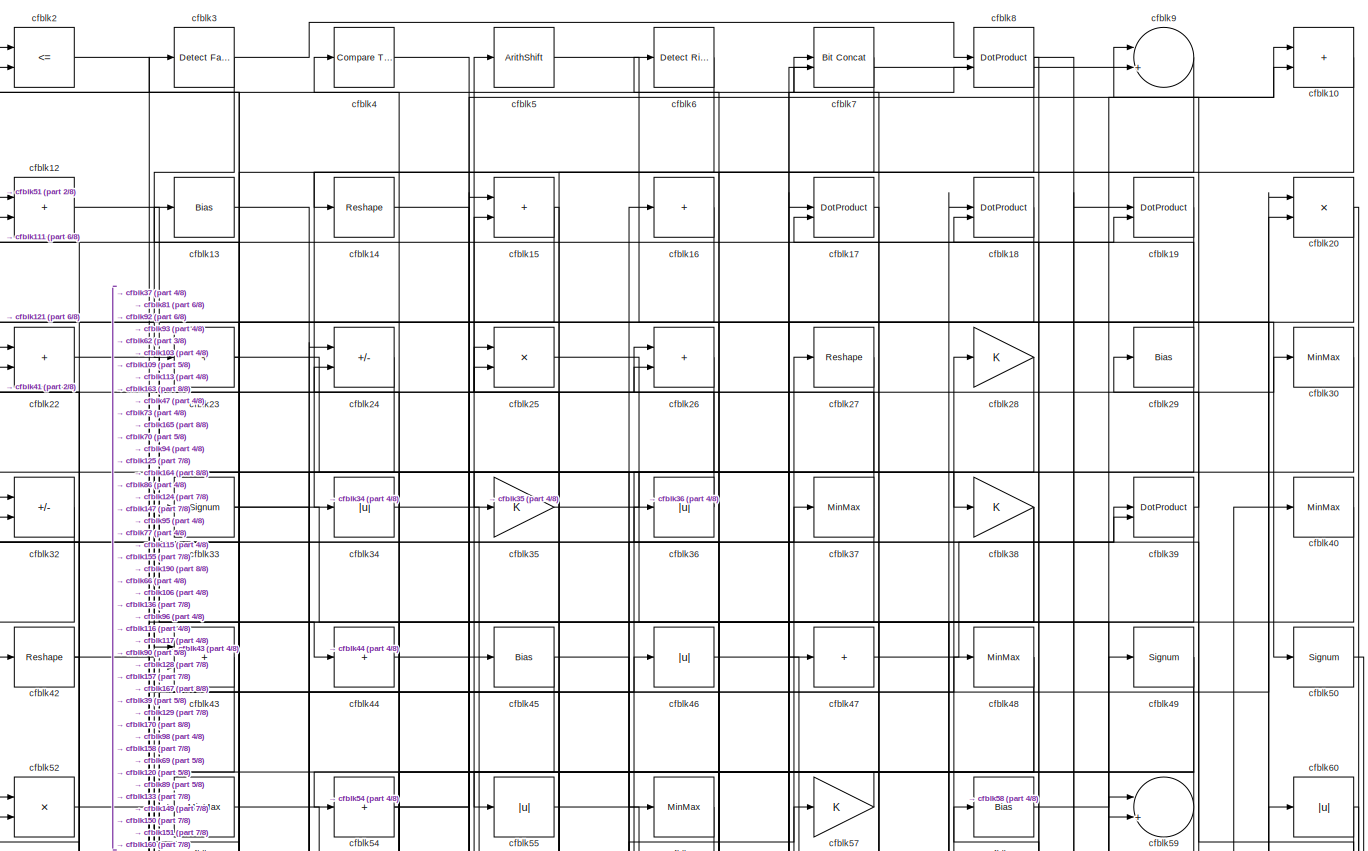
[diagram: root canvas - part 1/8, full width, top band]
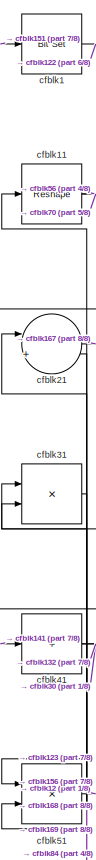
[diagram: root canvas - part 2/8, top left region]
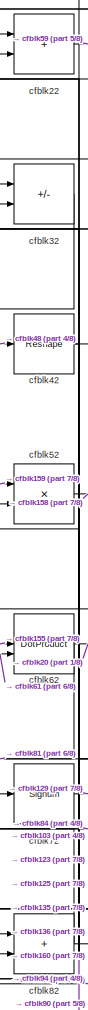
[diagram: root canvas - part 3/8, top left region]
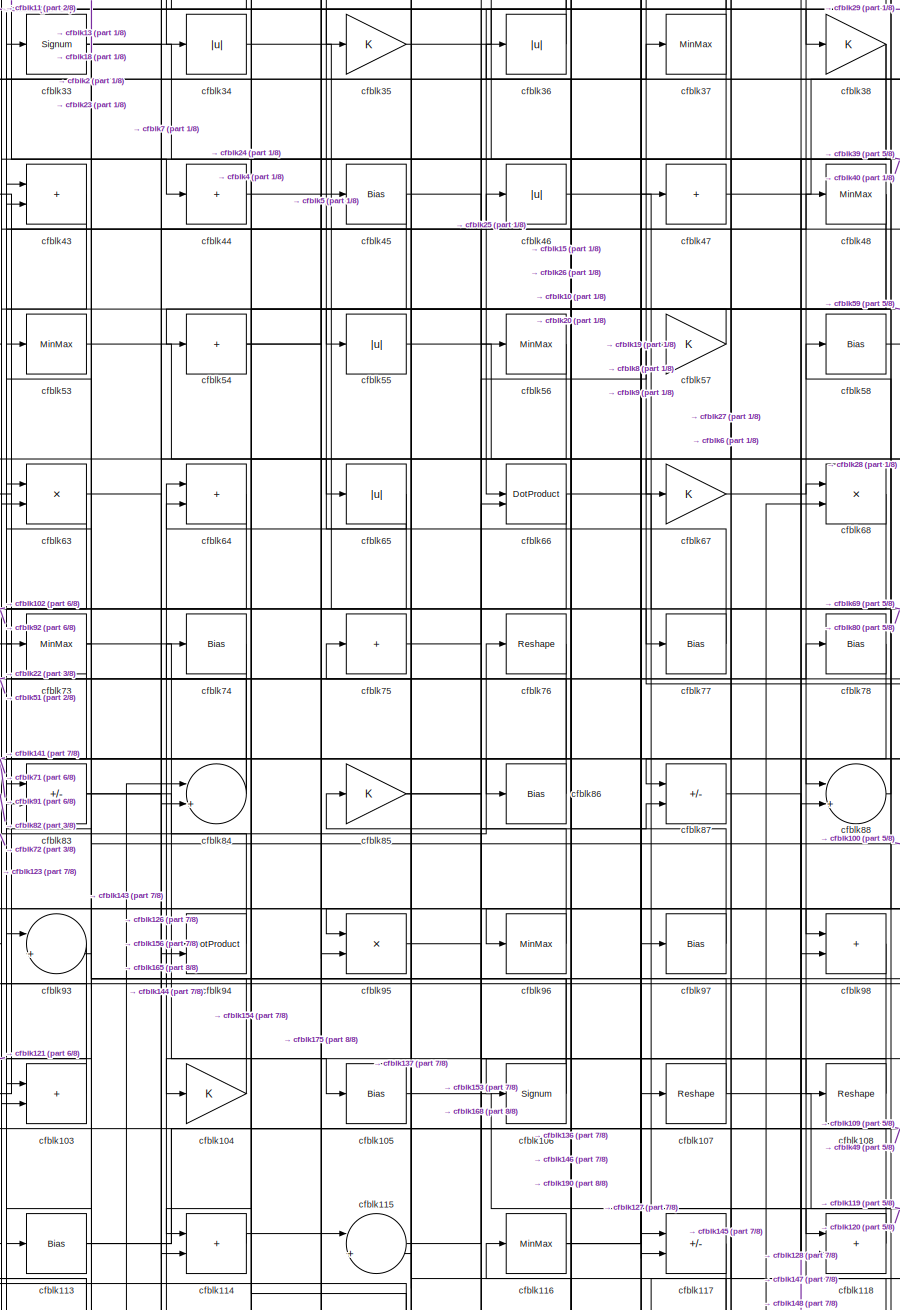
[diagram: root canvas - part 4/8, central region]
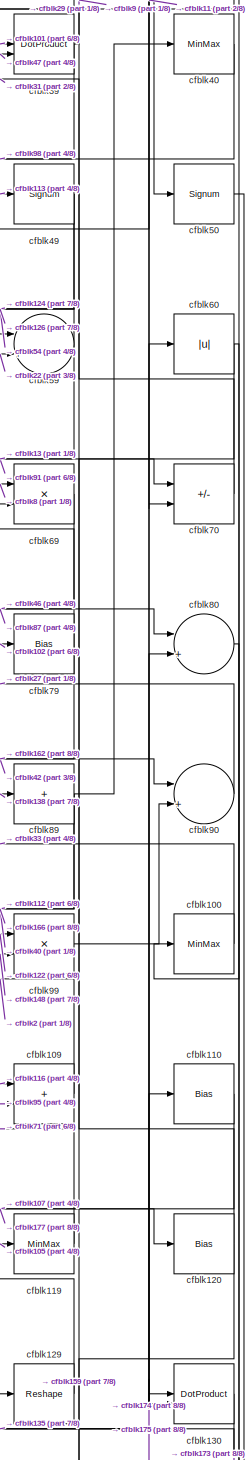
[diagram: root canvas - part 5/8, middle right region]
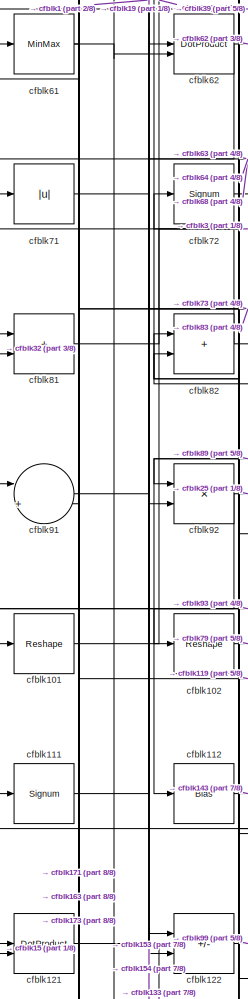
[diagram: root canvas - part 6/8, middle left region]
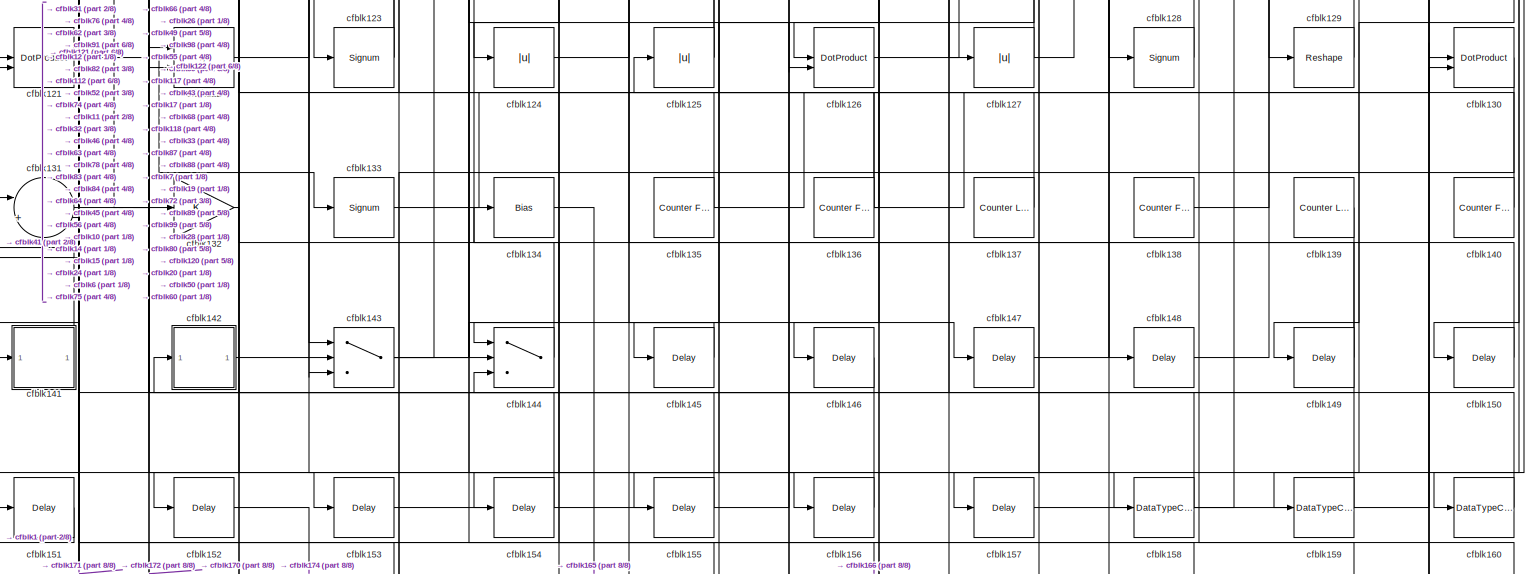
[diagram: root canvas - part 7/8, full width, bottom band]
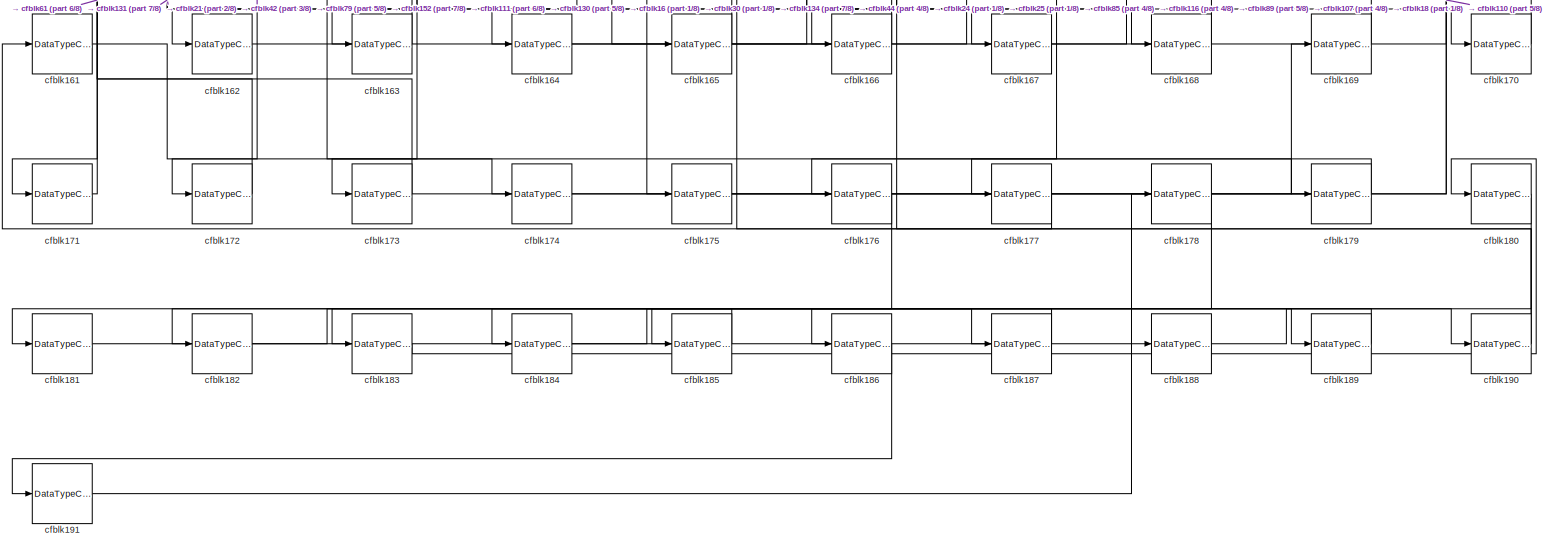
[diagram: root canvas - part 8/8, full width, bottom band]
MODEL slx_08d86b85c700
KIND model
CONFIG AbsTol = auto
CONFIG EnableMultiTasking = off
CONFIG FixedStep = auto
CONFIG MaxStep = auto
CONFIG MinStep = auto
CONFIG RelTol = 1e-3
CONFIG SampleTimeConstraint = Unconstrained
CONFIG SolverName = VariableStepAuto
CONFIG StartTime = 0.0
CONFIG StopTime = 10.0
BLOCK [Reference] cfblk1  REF=simulink/Logic and Bit
Operations/Bit Set
  LibrarySourceBlock = hdlsllib/Logic and Bit\nOperations/Bit Set
  SourceBlock = simulink/Logic and Bit\nOperations/Bit Set
  SourceType = Bit Set
BLOCK [Sum] cfblk10
  IconShape = rectangular
BLOCK [MinMax] cfblk100
BLOCK [Reshape] cfblk101
BLOCK [Reshape] cfblk102
BLOCK [Sum] cfblk103
  IconShape = rectangular
BLOCK [Gain] cfblk104
BLOCK [Bias] cfblk105
  Bias = 0.0
  SaturateOnIntegerOverflow = off
BLOCK [Signum] cfblk106
BLOCK [Reshape] cfblk107
BLOCK [Reshape] cfblk108
BLOCK [Sum] cfblk109
  IconShape = rectangular
BLOCK [Reshape] cfblk11
BLOCK [Bias] cfblk110
  Bias = 0.0
  SaturateOnIntegerOverflow = off
BLOCK [Signum] cfblk111
BLOCK [Bias] cfblk112
  Bias = 0.0
  SaturateOnIntegerOverflow = off
BLOCK [Bias] cfblk113
  Bias = 0.0
  SaturateOnIntegerOverflow = off
BLOCK [Sum] cfblk114
  IconShape = rectangular
BLOCK [Sum] cfblk115
  Inputs = |++
BLOCK [MinMax] cfblk116
BLOCK [Sum] cfblk117
  IconShape = rectangular
  Inputs = +-
BLOCK [Sum] cfblk118
  IconShape = rectangular
BLOCK [MinMax] cfblk119
BLOCK [Sum] cfblk12
  IconShape = rectangular
BLOCK [Bias] cfblk120
  Bias = 0.0
  SaturateOnIntegerOverflow = off
BLOCK [DotProduct] cfblk121
  OutDataTypeStr = Inherit: Inherit via internal rule
BLOCK [Sum] cfblk122
  IconShape = rectangular
  Inputs = +-
BLOCK [Signum] cfblk123
BLOCK [Abs] cfblk124
  SaturateOnIntegerOverflow = off
BLOCK [Abs] cfblk125
  SaturateOnIntegerOverflow = off
BLOCK [DotProduct] cfblk126
  OutDataTypeStr = Inherit: Inherit via internal rule
BLOCK [Abs] cfblk127
  SaturateOnIntegerOverflow = off
BLOCK [Signum] cfblk128
BLOCK [Reshape] cfblk129
BLOCK [Bias] cfblk13
  Bias = 0.0
  SaturateOnIntegerOverflow = off
BLOCK [DotProduct] cfblk130
  OutDataTypeStr = Inherit: Inherit via internal rule
BLOCK [Sum] cfblk131
  Inputs = |++
BLOCK [Gain] cfblk132
BLOCK [Signum] cfblk133
BLOCK [Bias] cfblk134
  Bias = 0.0
  SaturateOnIntegerOverflow = off
BLOCK [Reference] cfblk135  REF=hdlsllib/Sources/Counter
Free-Running
  SourceBlock = hdlsllib/Sources/Counter\nFree-Running
  SourceType = Counter Free-Running
BLOCK [Reference] cfblk136  REF=hdlsllib/Sources/Counter
Free-Running
  SourceBlock = hdlsllib/Sources/Counter\nFree-Running
  SourceType = Counter Free-Running
BLOCK [Reference] cfblk137  REF=hdlsllib/Sources/Counter
Limited
  SourceBlock = hdlsllib/Sources/Counter\nLimited
  SourceType = Counter Limited
BLOCK [Reference] cfblk138  REF=hdlsllib/Sources/Counter
Free-Running
  SourceBlock = hdlsllib/Sources/Counter\nFree-Running
  SourceType = Counter Free-Running
BLOCK [Reference] cfblk139  REF=hdlsllib/Sources/Counter
Limited
  SourceBlock = hdlsllib/Sources/Counter\nLimited
  SourceType = Counter Limited
BLOCK [Reshape] cfblk14
BLOCK [Reference] cfblk140  REF=hdlsllib/Sources/Counter
Free-Running
  SourceBlock = hdlsllib/Sources/Counter\nFree-Running
  SourceType = Counter Free-Running
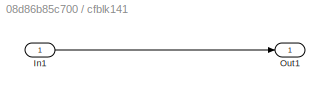
BLOCK [SubSystem] cfblk141
  LibrarySourceBlock = hdlsllib/Ports &\nSubsystems/Subsystem
BLOCK [Inport] cfblk141/In1
BLOCK [Outport] cfblk141/Out1
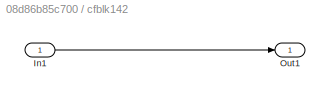
BLOCK [SubSystem] cfblk142
  LibrarySourceBlock = hdlsllib/Ports &\nSubsystems/Subsystem
BLOCK [Inport] cfblk142/In1
BLOCK [Outport] cfblk142/Out1
BLOCK [Switch] cfblk143
  InputSameDT = off
  SaturateOnIntegerOverflow = off
BLOCK [Switch] cfblk144
  InputSameDT = off
  SaturateOnIntegerOverflow = off
BLOCK [Delay] cfblk145
  InputPortMap = u0
  SampleTime = 1
BLOCK [Delay] cfblk146
  InputPortMap = u0
  SampleTime = 1
BLOCK [Delay] cfblk147
  InputPortMap = u0
  SampleTime = 1
BLOCK [Delay] cfblk148
  InputPortMap = u0
  SampleTime = 1
BLOCK [Delay] cfblk149
  InputPortMap = u0
  SampleTime = 1
BLOCK [Sum] cfblk15
  IconShape = rectangular
BLOCK [Delay] cfblk150
  InputPortMap = u0
  SampleTime = 1
BLOCK [Delay] cfblk151
  InputPortMap = u0
  SampleTime = 1
BLOCK [Delay] cfblk152
  InputPortMap = u0
  SampleTime = 1
BLOCK [Delay] cfblk153
  InputPortMap = u0
  SampleTime = 1
BLOCK [Delay] cfblk154
  InputPortMap = u0
  SampleTime = 1
BLOCK [Delay] cfblk155
  InputPortMap = u0
  SampleTime = 1
BLOCK [Delay] cfblk156
  InputPortMap = u0
  SampleTime = 1
BLOCK [Delay] cfblk157
  InputPortMap = u0
  SampleTime = 1
BLOCK [DataTypeConversion] cfblk158
  RndMeth = Floor
  SaturateOnIntegerOverflow = off
BLOCK [DataTypeConversion] cfblk159
  OutDataTypeStr = uint8
  RndMeth = Floor
  SaturateOnIntegerOverflow = off
BLOCK [Sum] cfblk16
  IconShape = rectangular
  Inputs = +
BLOCK [DataTypeConversion] cfblk160
  OutDataTypeStr = uint8
  RndMeth = Floor
  SaturateOnIntegerOverflow = off
BLOCK [DataTypeConversion] cfblk161
  RndMeth = Floor
  SaturateOnIntegerOverflow = off
BLOCK [DataTypeConversion] cfblk162
  OutDataTypeStr = uint8
  RndMeth = Floor
  SaturateOnIntegerOverflow = off
BLOCK [DataTypeConversion] cfblk163
  OutDataTypeStr = uint8
  RndMeth = Floor
  SaturateOnIntegerOverflow = off
BLOCK [DataTypeConversion] cfblk164
  OutDataTypeStr = uint8
  RndMeth = Floor
  SaturateOnIntegerOverflow = off
BLOCK [DataTypeConversion] cfblk165
  RndMeth = Floor
  SaturateOnIntegerOverflow = off
BLOCK [DataTypeConversion] cfblk166
  OutDataTypeStr = uint8
  RndMeth = Floor
  SaturateOnIntegerOverflow = off
BLOCK [DataTypeConversion] cfblk167
  OutDataTypeStr = uint8
  RndMeth = Floor
  SaturateOnIntegerOverflow = off
BLOCK [DataTypeConversion] cfblk168
  OutDataTypeStr = uint8
  RndMeth = Floor
  SaturateOnIntegerOverflow = off
BLOCK [DataTypeConversion] cfblk169
  OutDataTypeStr = uint8
  RndMeth = Floor
  SaturateOnIntegerOverflow = off
BLOCK [DotProduct] cfblk17
  OutDataTypeStr = Inherit: Inherit via internal rule
BLOCK [DataTypeConversion] cfblk170
  OutDataTypeStr = uint8
  RndMeth = Floor
  SaturateOnIntegerOverflow = off
BLOCK [DataTypeConversion] cfblk171
  OutDataTypeStr = uint8
  RndMeth = Floor
  SaturateOnIntegerOverflow = off
BLOCK [DataTypeConversion] cfblk172
  OutDataTypeStr = uint8
  RndMeth = Floor
  SaturateOnIntegerOverflow = off
BLOCK [DataTypeConversion] cfblk173
  RndMeth = Floor
  SaturateOnIntegerOverflow = off
BLOCK [DataTypeConversion] cfblk174
  OutDataTypeStr = uint8
  RndMeth = Floor
  SaturateOnIntegerOverflow = off
BLOCK [DataTypeConversion] cfblk175
  OutDataTypeStr = uint8
  RndMeth = Floor
  SaturateOnIntegerOverflow = off
BLOCK [DataTypeConversion] cfblk176
  RndMeth = Floor
  SaturateOnIntegerOverflow = off
BLOCK [DataTypeConversion] cfblk177
  OutDataTypeStr = uint8
  RndMeth = Floor
  SaturateOnIntegerOverflow = off
BLOCK [DataTypeConversion] cfblk178
  RndMeth = Floor
  SaturateOnIntegerOverflow = off
BLOCK [DataTypeConversion] cfblk179
  OutDataTypeStr = uint8
  RndMeth = Floor
  SaturateOnIntegerOverflow = off
BLOCK [DotProduct] cfblk18
  OutDataTypeStr = Inherit: Inherit via internal rule
BLOCK [DataTypeConversion] cfblk180
  RndMeth = Floor
  SaturateOnIntegerOverflow = off
BLOCK [DataTypeConversion] cfblk181
  OutDataTypeStr = uint8
  RndMeth = Floor
  SaturateOnIntegerOverflow = off
BLOCK [DataTypeConversion] cfblk182
  RndMeth = Floor
  SaturateOnIntegerOverflow = off
BLOCK [DataTypeConversion] cfblk183
  OutDataTypeStr = uint8
  RndMeth = Floor
  SaturateOnIntegerOverflow = off
BLOCK [DataTypeConversion] cfblk184
  RndMeth = Floor
  SaturateOnIntegerOverflow = off
BLOCK [DataTypeConversion] cfblk185
  OutDataTypeStr = uint8
  RndMeth = Floor
  SaturateOnIntegerOverflow = off
BLOCK [DataTypeConversion] cfblk186
  RndMeth = Floor
  SaturateOnIntegerOverflow = off
BLOCK [DataTypeConversion] cfblk187
  OutDataTypeStr = uint8
  RndMeth = Floor
  SaturateOnIntegerOverflow = off
BLOCK [DataTypeConversion] cfblk188
  RndMeth = Floor
  SaturateOnIntegerOverflow = off
BLOCK [DataTypeConversion] cfblk189
  OutDataTypeStr = uint8
  RndMeth = Floor
  SaturateOnIntegerOverflow = off
BLOCK [DotProduct] cfblk19
  OutDataTypeStr = Inherit: Inherit via internal rule
BLOCK [DataTypeConversion] cfblk190
  RndMeth = Floor
  SaturateOnIntegerOverflow = off
BLOCK [DataTypeConversion] cfblk191
  OutDataTypeStr = uint8
  RndMeth = Floor
  SaturateOnIntegerOverflow = off
BLOCK [RelationalOperator] cfblk2
  InputSameDT = off
  Operator = <=
  OutDataTypeStr = boolean
BLOCK [Product] cfblk20
  Inputs = */
  RndMeth = Zero
  SaturateOnIntegerOverflow = on
BLOCK [Sum] cfblk21
  Inputs = |++
BLOCK [Sum] cfblk22
  IconShape = rectangular
BLOCK [Sum] cfblk23
  IconShape = rectangular
  Inputs = +
BLOCK [Sum] cfblk24
  IconShape = rectangular
  Inputs = +-
BLOCK [Product] cfblk25
  Inputs = */
  RndMeth = Zero
  SaturateOnIntegerOverflow = on
BLOCK [Sum] cfblk26
  IconShape = rectangular
BLOCK [Reshape] cfblk27
BLOCK [Gain] cfblk28
BLOCK [Bias] cfblk29
  Bias = 0.0
  SaturateOnIntegerOverflow = off
BLOCK [Reference] cfblk3  REF=hdlsllib/Logic and Bit
Operations/Detect Fall
Negative
  SourceBlock = hdlsllib/Logic and Bit\nOperations/Detect Fall\nNegative
  SourceType = Detect Fall Negative
BLOCK [MinMax] cfblk30
BLOCK [Product] cfblk31
  Inputs = */
  RndMeth = Zero
  SaturateOnIntegerOverflow = on
BLOCK [Sum] cfblk32
  IconShape = rectangular
  Inputs = +-
BLOCK [Signum] cfblk33
BLOCK [Abs] cfblk34
  SaturateOnIntegerOverflow = off
BLOCK [Gain] cfblk35
BLOCK [Abs] cfblk36
  SaturateOnIntegerOverflow = off
BLOCK [MinMax] cfblk37
BLOCK [Gain] cfblk38
BLOCK [DotProduct] cfblk39
  OutDataTypeStr = Inherit: Inherit via internal rule
BLOCK [Reference] cfblk4  REF=hdlsllib/Logic and Bit
Operations/Compare
To Zero
  SourceBlock = hdlsllib/Logic and Bit\nOperations/Compare\nTo Zero
  SourceType = Compare To Zero
BLOCK [MinMax] cfblk40
BLOCK [Sum] cfblk41
  IconShape = rectangular
  Inputs = +
BLOCK [Reshape] cfblk42
BLOCK [Sum] cfblk43
  IconShape = rectangular
BLOCK [Sum] cfblk44
  IconShape = rectangular
  Inputs = +
BLOCK [Bias] cfblk45
  Bias = 0.0
  SaturateOnIntegerOverflow = off
BLOCK [Abs] cfblk46
  SaturateOnIntegerOverflow = off
BLOCK [Sum] cfblk47
  IconShape = rectangular
  Inputs = +
BLOCK [MinMax] cfblk48
BLOCK [Signum] cfblk49
BLOCK [ArithShift] cfblk5
  BitShiftNumber = 8
  InputPortMap = u0
BLOCK [Signum] cfblk50
BLOCK [Product] cfblk51
  Inputs = */
  RndMeth = Zero
  SaturateOnIntegerOverflow = on
BLOCK [Product] cfblk52
  Inputs = */
  RndMeth = Zero
  SaturateOnIntegerOverflow = on
BLOCK [MinMax] cfblk53
BLOCK [Sum] cfblk54
  IconShape = rectangular
  Inputs = +
BLOCK [Abs] cfblk55
  SaturateOnIntegerOverflow = off
BLOCK [MinMax] cfblk56
BLOCK [Gain] cfblk57
BLOCK [Bias] cfblk58
  Bias = 0.0
  SaturateOnIntegerOverflow = off
BLOCK [Sum] cfblk59
  Inputs = |++
BLOCK [Reference] cfblk6  REF=hdlsllib/Logic and Bit
Operations/Detect Rise
Nonnegative
  SourceBlock = hdlsllib/Logic and Bit\nOperations/Detect Rise\nNonnegative
  SourceType = Detect Rise Nonnegative
BLOCK [Abs] cfblk60
  SaturateOnIntegerOverflow = off
BLOCK [MinMax] cfblk61
BLOCK [DotProduct] cfblk62
  OutDataTypeStr = Inherit: Inherit via internal rule
BLOCK [Product] cfblk63
  Inputs = */
  RndMeth = Zero
  SaturateOnIntegerOverflow = on
BLOCK [Sum] cfblk64
  IconShape = rectangular
BLOCK [Abs] cfblk65
  SaturateOnIntegerOverflow = off
BLOCK [DotProduct] cfblk66
  OutDataTypeStr = Inherit: Inherit via internal rule
BLOCK [Gain] cfblk67
BLOCK [Product] cfblk68
  Inputs = */
  RndMeth = Zero
  SaturateOnIntegerOverflow = on
BLOCK [Product] cfblk69
  Inputs = */
  RndMeth = Zero
  SaturateOnIntegerOverflow = on
BLOCK [Reference] cfblk7  REF=hdlsllib/Logic and Bit
Operations/Bit Concat
  SourceBlock = hdlsllib/Logic and Bit\nOperations/Bit Concat
  SourceType = Bit Concat
BLOCK [Sum] cfblk70
  IconShape = rectangular
  Inputs = +-
BLOCK [Abs] cfblk71
  SaturateOnIntegerOverflow = off
BLOCK [Signum] cfblk72
BLOCK [MinMax] cfblk73
BLOCK [Bias] cfblk74
  Bias = 0.0
  SaturateOnIntegerOverflow = off
BLOCK [Sum] cfblk75
  IconShape = rectangular
  Inputs = +
BLOCK [Reshape] cfblk76
BLOCK [Bias] cfblk77
  Bias = 0.0
  SaturateOnIntegerOverflow = off
BLOCK [Bias] cfblk78
  Bias = 0.0
  SaturateOnIntegerOverflow = off
BLOCK [Bias] cfblk79
  Bias = 0.0
  SaturateOnIntegerOverflow = off
BLOCK [DotProduct] cfblk8
  OutDataTypeStr = Inherit: Inherit via internal rule
BLOCK [Sum] cfblk80
  Inputs = |++
BLOCK [Sum] cfblk81
  IconShape = rectangular
BLOCK [Sum] cfblk82
  IconShape = rectangular
BLOCK [Sum] cfblk83
  IconShape = rectangular
  Inputs = +-
BLOCK [Sum] cfblk84
  Inputs = |++
BLOCK [Gain] cfblk85
BLOCK [Bias] cfblk86
  Bias = 0.0
  SaturateOnIntegerOverflow = off
BLOCK [Sum] cfblk87
  IconShape = rectangular
  Inputs = +-
BLOCK [Sum] cfblk88
  Inputs = |++
BLOCK [Sum] cfblk89
  IconShape = rectangular
  Inputs = +
BLOCK [Sum] cfblk9
  Inputs = |++
BLOCK [Sum] cfblk90
  Inputs = |++
BLOCK [Sum] cfblk91
  Inputs = |++
BLOCK [Product] cfblk92
  Inputs = */
  RndMeth = Zero
  SaturateOnIntegerOverflow = on
BLOCK [Sum] cfblk93
  Inputs = |++
BLOCK [DotProduct] cfblk94
  OutDataTypeStr = Inherit: Inherit via internal rule
BLOCK [Product] cfblk95
  Inputs = */
  RndMeth = Zero
  SaturateOnIntegerOverflow = on
BLOCK [MinMax] cfblk96
BLOCK [Bias] cfblk97
  Bias = 0.0
  SaturateOnIntegerOverflow = off
BLOCK [Sum] cfblk98
  IconShape = rectangular
BLOCK [Product] cfblk99
  Inputs = */
  RndMeth = Zero
  SaturateOnIntegerOverflow = on
LINE cfblk100:1 -> cfblk33:1
LINE cfblk101:1 -> cfblk39:1
LINE cfblk102:1 -> cfblk79:1
LINE cfblk103:1 -> cfblk22:1
LINE cfblk104:1 -> cfblk94:1
LINE cfblk105:1 -> cfblk119:1
NET cfblk106:1 -> cfblk2:1, cfblk83:2
NET cfblk107:1 -> cfblk120:1, cfblk53:1
LINE cfblk108:1 -> cfblk104:1
LINE cfblk109:1 -> cfblk2:2
LINE cfblk10:1 -> cfblk106:1
LINE cfblk110:1 -> cfblk177:1
LINE cfblk111:1 -> cfblk19:2
LINE cfblk112:1 -> cfblk143:1
NET cfblk113:1 -> cfblk49:1, cfblk97:1
LINE cfblk114:1 -> cfblk115:1
LINE cfblk115:1 -> cfblk87:2
NET cfblk116:1 -> cfblk109:1, cfblk8:2, cfblk9:2
LINE cfblk117:1 -> cfblk145:1
LINE cfblk118:1 -> cfblk74:1
LINE cfblk119:1 -> cfblk71:1
NET cfblk11:1 -> cfblk56:1, cfblk70:2
NET cfblk120:1 -> cfblk159:1, cfblk29:1
LINE cfblk121:1 -> cfblk133:1
LINE cfblk122:1 -> cfblk99:1
NET cfblk123:1 -> cfblk11:1, cfblk32:2
LINE cfblk124:1 -> cfblk10:1
NET cfblk125:1 -> cfblk24:2, cfblk32:1
LINE cfblk126:1 -> cfblk59:1
NET cfblk127:1 -> cfblk43:2, cfblk68:2
LINE cfblk128:1 -> cfblk7:1
LINE cfblk129:1 -> cfblk28:1
LINE cfblk12:1 -> cfblk44:1
LINE cfblk130:1 -> cfblk173:1
LINE cfblk131:1 -> cfblk170:1
LINE cfblk132:1 -> cfblk152:1
LINE cfblk133:1 -> cfblk60:1
LINE cfblk134:1 -> cfblk165:1
NET cfblk135:1 -> cfblk80:2, cfblk82:2
NET cfblk136:1 -> cfblk26:2, cfblk63:1, cfblk82:1, cfblk88:2
LINE cfblk137:1 -> cfblk75:1
LINE cfblk138:1 -> cfblk89:1
LINE cfblk139:1 -> cfblk142:1
LINE cfblk13:1 -> cfblk70:1
LINE cfblk140:1 -> cfblk125:1
LINE cfblk141/In1:1 -> cfblk141/Out1:1
LINE cfblk141:1 -> cfblk41:1
LINE cfblk142/In1:1 -> cfblk142/Out1:1
LINE cfblk142:1 -> cfblk143:2
NET cfblk143:1 -> cfblk46:1, cfblk78:1, cfblk84:1
LINE cfblk144:1 -> cfblk64:1
LINE cfblk145:1 -> cfblk144:2
LINE cfblk146:1 -> cfblk144:3
LINE cfblk147:1 -> cfblk118:2
LINE cfblk148:1 -> cfblk99:2
LINE cfblk149:1 -> cfblk15:1
LINE cfblk14:1 -> cfblk147:1
LINE cfblk150:1 -> cfblk12:2
LINE cfblk151:1 -> cfblk1:1
LINE cfblk152:1 -> cfblk174:1
LINE cfblk153:1 -> cfblk66:2
LINE cfblk154:1 -> cfblk122:1
LINE cfblk155:1 -> cfblk62:1
LINE cfblk156:1 -> cfblk31:2
LINE cfblk157:1 -> cfblk20:1
NET cfblk158:1 -> cfblk17:1, cfblk19:1
LINE cfblk159:1 -> cfblk52:1
NET cfblk15:1 -> cfblk115:2, cfblk121:2
LINE cfblk160:1 -> cfblk52:2
LINE cfblk161:1 -> cfblk179:1
LINE cfblk162:1 -> cfblk110:1
LINE cfblk163:1 -> cfblk111:1
LINE cfblk164:1 -> cfblk16:1
NET cfblk165:1 -> cfblk107:1, cfblk24:1
LINE cfblk166:1 -> cfblk134:1
LINE cfblk167:1 -> cfblk18:1
LINE cfblk168:1 -> cfblk21:1
LINE cfblk169:1 -> cfblk21:2
LINE cfblk16:1 -> cfblk163:1
LINE cfblk170:1 -> cfblk18:2
LINE cfblk171:1 -> cfblk131:1
LINE cfblk172:1 -> cfblk131:2
NET cfblk173:1 -> cfblk169:1, cfblk61:1
LINE cfblk174:1 -> cfblk130:1
LINE cfblk175:1 -> cfblk130:2
LINE cfblk176:1 -> cfblk181:1
LINE cfblk177:1 -> cfblk161:1
LINE cfblk178:1 -> cfblk183:1
LINE cfblk179:1 -> cfblk176:1
LINE cfblk17:1 -> cfblk157:1
LINE cfblk180:1 -> cfblk185:1
LINE cfblk181:1 -> cfblk178:1
LINE cfblk182:1 -> cfblk187:1
LINE cfblk183:1 -> cfblk180:1
LINE cfblk184:1 -> cfblk189:1
LINE cfblk185:1 -> cfblk182:1
LINE cfblk186:1 -> cfblk191:1
LINE cfblk187:1 -> cfblk184:1
LINE cfblk188:1 -> cfblk190:1
LINE cfblk189:1 -> cfblk186:1
LINE cfblk18:1 -> cfblk113:1
NET cfblk190:1 -> cfblk116:1, cfblk25:2
LINE cfblk191:1 -> cfblk188:1
LINE cfblk19:1 -> cfblk117:2
LINE cfblk1:1 -> cfblk122:2
NET cfblk20:1 -> cfblk160:1, cfblk96:1
LINE cfblk21:1 -> cfblk167:1
LINE cfblk22:1 -> cfblk59:2
NET cfblk23:1 -> cfblk103:1, cfblk47:1
LINE cfblk24:1 -> cfblk43:1
LINE cfblk25:1 -> cfblk117:1
LINE cfblk26:1 -> cfblk94:2
LINE cfblk27:1 -> cfblk66:1
LINE cfblk28:1 -> cfblk93:1
NET cfblk29:1 -> cfblk17:2, cfblk35:1
LINE cfblk2:1 -> cfblk7:2
LINE cfblk30:1 -> cfblk164:1
LINE cfblk31:1 -> cfblk51:1
LINE cfblk32:1 -> cfblk81:2
NET cfblk33:1 -> cfblk128:1, cfblk84:2
LINE cfblk34:1 -> cfblk77:1
LINE cfblk35:1 -> cfblk38:1
LINE cfblk36:1 -> cfblk15:2
NET cfblk37:1 -> cfblk63:2, cfblk6:1
NET cfblk38:1 -> cfblk114:1, cfblk67:1
NET cfblk39:1 -> cfblk98:2, cfblk9:1
NET cfblk3:1 -> cfblk23:1, cfblk8:1
LINE cfblk40:1 -> cfblk86:1
NET cfblk41:1 -> cfblk132:1, cfblk30:1
NET cfblk42:1 -> cfblk172:1, cfblk90:1
LINE cfblk43:1 -> cfblk143:3
LINE cfblk44:1 -> cfblk175:1
NET cfblk45:1 -> cfblk108:1, cfblk154:1
LINE cfblk46:1 -> cfblk80:1
LINE cfblk47:1 -> cfblk39:2
NET cfblk48:1 -> cfblk73:1, cfblk95:1
NET cfblk49:1 -> cfblk124:1, cfblk126:1
LINE cfblk4:1 -> cfblk95:2
LINE cfblk50:1 -> cfblk151:1
LINE cfblk51:1 -> cfblk12:1
LINE cfblk52:1 -> cfblk158:1
LINE cfblk53:1 -> cfblk65:1
NET cfblk54:1 -> cfblk26:1, cfblk45:1
LINE cfblk55:1 -> cfblk127:1
LINE cfblk56:1 -> cfblk144:1
LINE cfblk57:1 -> cfblk55:1
LINE cfblk58:1 -> cfblk10:2
NET cfblk59:1 -> cfblk54:1, cfblk91:1
LINE cfblk5:1 -> cfblk50:1
NET cfblk60:1 -> cfblk149:1, cfblk150:1
NET cfblk61:1 -> cfblk171:1, cfblk62:2
NET cfblk62:1 -> cfblk20:2, cfblk81:1
NET cfblk63:1 -> cfblk156:1, cfblk92:1
LINE cfblk64:1 -> cfblk92:2
NET cfblk65:1 -> cfblk114:2, cfblk64:2
NET cfblk66:1 -> cfblk103:2, cfblk118:1
LINE cfblk67:1 -> cfblk68:1
LINE cfblk68:1 -> cfblk102:1
LINE cfblk69:1 -> cfblk87:1
LINE cfblk6:1 -> cfblk155:1
LINE cfblk70:1 -> cfblk31:1
LINE cfblk71:1 -> cfblk83:1
LINE cfblk72:1 -> cfblk129:1
NET cfblk73:1 -> cfblk105:1, cfblk13:1, cfblk91:2
LINE cfblk74:1 -> cfblk123:1
LINE cfblk75:1 -> cfblk57:1
LINE cfblk76:1 -> cfblk141:1
LINE cfblk77:1 -> cfblk5:1
LINE cfblk78:1 -> cfblk88:1
NET cfblk79:1 -> cfblk162:1, cfblk69:2
LINE cfblk7:1 -> cfblk34:1
LINE cfblk80:1 -> cfblk100:1
LINE cfblk81:1 -> cfblk3:1
NET cfblk82:1 -> cfblk42:1, cfblk48:1
NET cfblk83:1 -> cfblk126:2, cfblk76:1
NET cfblk84:1 -> cfblk22:2, cfblk51:2
NET cfblk85:1 -> cfblk168:1, cfblk37:1
LINE cfblk86:1 -> cfblk4:1
LINE cfblk87:1 -> cfblk148:1
LINE cfblk88:1 -> cfblk58:1
NET cfblk89:1 -> cfblk112:1, cfblk166:1, cfblk40:1
NET cfblk8:1 -> cfblk69:1, cfblk93:2, cfblk98:1
LINE cfblk90:1 -> cfblk27:1
LINE cfblk91:1 -> cfblk153:1
NET cfblk92:1 -> cfblk101:1, cfblk25:1
LINE cfblk93:1 -> cfblk121:1
LINE cfblk94:1 -> cfblk72:1
LINE cfblk95:1 -> cfblk109:2
LINE cfblk96:1 -> cfblk85:1
LINE cfblk97:1 -> cfblk36:1
LINE cfblk98:1 -> cfblk146:1
LINE cfblk99:1 -> cfblk90:2
LINE cfblk9:1 -> cfblk14:1
note: NET lines group one-source signal fan-out (src -> all destinations, sorted); 1:1 wires keep LINE
